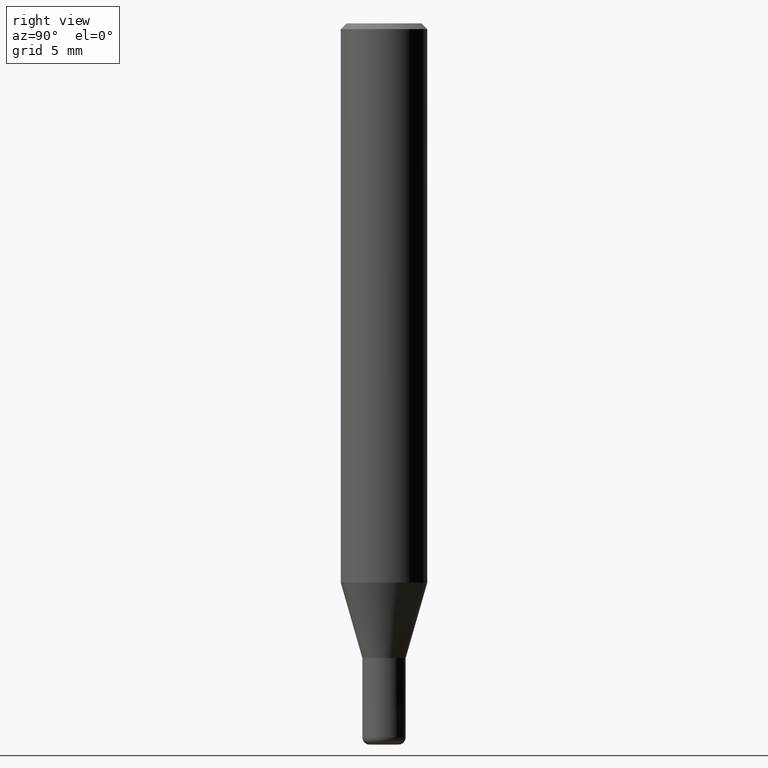
[diagram: clean part render]
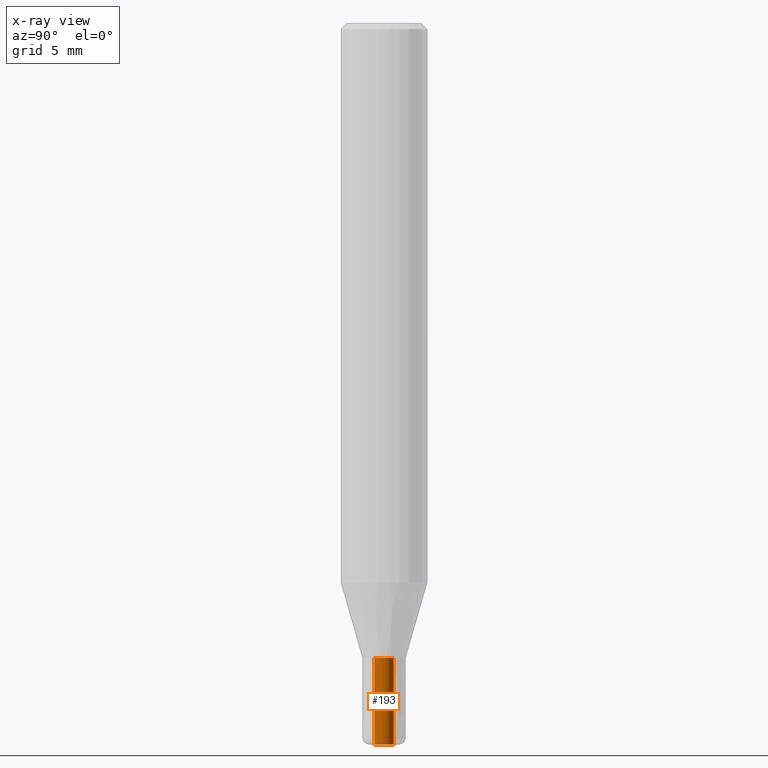
[diagram: x-ray — body ghosted, one internal face saturated and labeled with its STEP entity id]
A machine part, right view, then the same camera in x-ray: the body is ghosted and one INTERNAL B-rep face — a face not visible from any outside direction — is saturated and labeled: STEP entity #193.
In plain terms, the highlighted cylindrical surface (edge-blend (fillet) strip) has radius 0.675 mm, axis along (-0, -0, 1).
Its self-contained STEP definition (entity closure, byte-faithful):
#139=EDGE_CURVE('',#195,#203,#331,.T.);
#145=EDGE_CURVE('',#195,#215,#337,.T.);
#193=ADVANCED_FACE('',(#393),#394,.F.);
#195=VERTEX_POINT('',#396);
#203=VERTEX_POINT('',#406);
#215=VERTEX_POINT('',#419);
#243=VERTEX_POINT('',#453);
#251=EDGE_CURVE('',#215,#243,#462,.T.);
#265=EDGE_CURVE('',#243,#203,#476,.T.);
#331=CIRCLE('',#540,0.675);
#337=LINE('',#549,#550);
#393=FACE_OUTER_BOUND('',#619,.T.);
#394=CYLINDRICAL_SURFACE('',#620,0.675);
#396=CARTESIAN_POINT('',(0.0,0.675,-44.0));
#406=CARTESIAN_POINT('',(8.26609288830105E-017,-0.675,-44.0));
#419=CARTESIAN_POINT('',(0.0,0.675,-50.0));
#453=CARTESIAN_POINT('',(8.26609288830105E-017,-0.675,-50.0));
#462=CIRCLE('',#696,0.675);
#476=LINE('',#718,#719);
#540=AXIS2_PLACEMENT_3D('',#792,#793,#794);
#549=CARTESIAN_POINT('',(-8.26609288830105E-017,0.675,-47.0));
#550=VECTOR('',#801,1.0);
#619=EDGE_LOOP('',(#878,#879,#880,#881));
#620=AXIS2_PLACEMENT_3D('',#882,#883,#884);
#696=AXIS2_PLACEMENT_3D('',#966,#967,#968);
#718=CARTESIAN_POINT('',(8.26609288830105E-017,-0.675,-47.0));
#719=VECTOR('',#980,1.0);
#792=CARTESIAN_POINT('',(0.0,0.0,-44.0));
#793=DIRECTION('',(0.0,0.0,-1.0));
#794=DIRECTION('',(0.0,1.0,0.0));
#801=DIRECTION('',(0.0,-0.0,-1.0));
#878=ORIENTED_EDGE('',*,*,#145,.T.);
#879=ORIENTED_EDGE('',*,*,#251,.T.);
#880=ORIENTED_EDGE('',*,*,#265,.T.);
#881=ORIENTED_EDGE('',*,*,#139,.F.);
#882=CARTESIAN_POINT('',(0.0,0.0,-47.0));
#883=DIRECTION('',(-0.0,-0.0,1.0));
#884=DIRECTION('',(0.0,1.0,0.0));
#966=CARTESIAN_POINT('',(0.0,0.0,-50.0));
#967=DIRECTION('',(0.0,0.0,-1.0));
#968=DIRECTION('',(0.0,1.0,0.0));
#980=DIRECTION('',(0.0,-0.0,1.0));